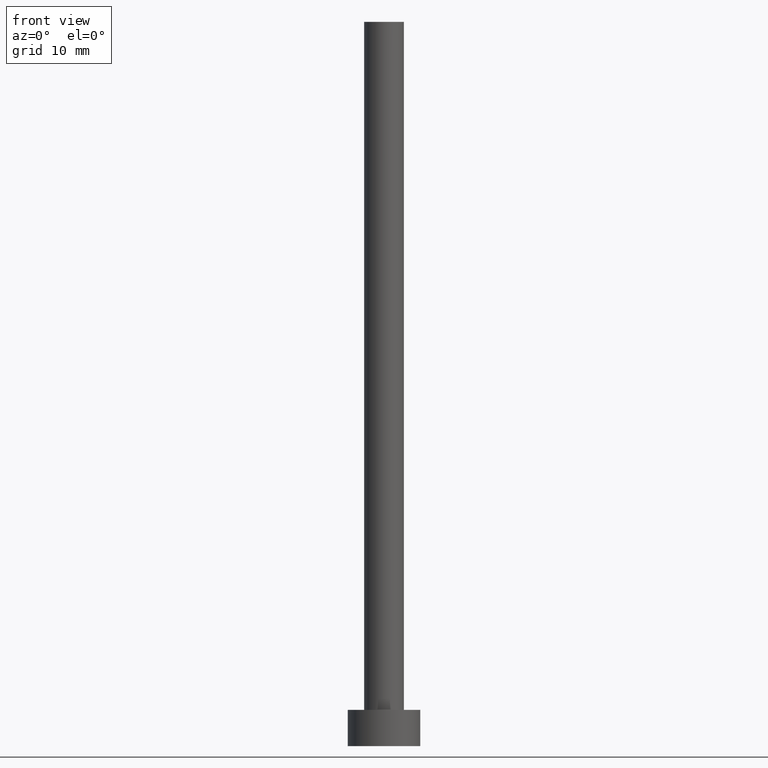
[diagram: clean part render]
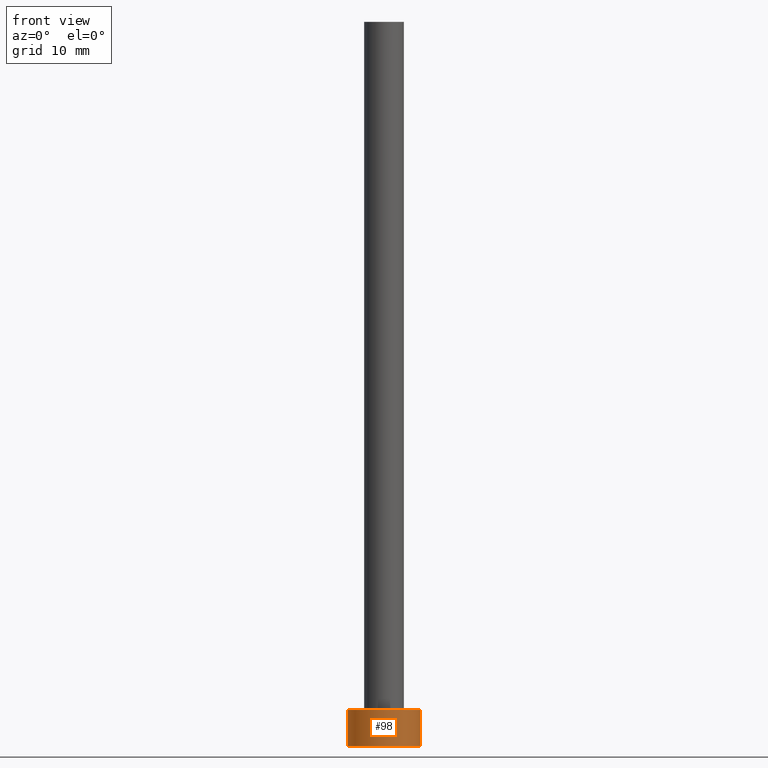
[diagram: same view with one face highlighted and labeled with its STEP entity id]
A machine part, front view. The second image highlights one B-rep face of the part: STEP entity #98.
In plain terms, the highlighted cylindrical surface (edge-blend (fillet) strip) has radius 5 mm, axis along (-0, -0, -1).
Its self-contained STEP definition (entity closure, byte-faithful):
#1 = CARTESIAN_POINT ( 'NONE',  ( 0.000000000000000000, 0.000000000000000000, 5.000000000000000000 ) ) ;
#7 = AXIS2_PLACEMENT_3D ( 'NONE', #251, #81, #61 ) ;
#17 = DIRECTION ( 'NONE',  ( -0.000000000000000000, -0.000000000000000000, -1.000000000000000000 ) ) ;
#30 = AXIS2_PLACEMENT_3D ( 'NONE', #225, #148, #43 ) ;
#31 = ORIENTED_EDGE ( 'NONE', *, *, #125, .T. ) ;
#34 = ORIENTED_EDGE ( 'NONE', *, *, #209, .T. ) ;
#38 = VERTEX_POINT ( 'NONE', #39 ) ;
#39 = CARTESIAN_POINT ( 'NONE',  ( 5.000000000000000000, 6.123233995736766282E-16, 0.000000000000000000 ) ) ;
#43 = DIRECTION ( 'NONE',  ( 1.000000000000000000, 0.000000000000000000, 0.000000000000000000 ) ) ;
#59 = AXIS2_PLACEMENT_3D ( 'NONE', #1, #17, #106 ) ;
#61 = DIRECTION ( 'NONE',  ( 1.000000000000000000, 0.000000000000000000, 0.000000000000000000 ) ) ;
#62 = EDGE_LOOP ( 'NONE', ( #253, #161, #31, #34 ) ) ;
#66 = LINE ( 'NONE', #68, #254 ) ;
#68 = CARTESIAN_POINT ( 'NONE',  ( -5.000000000000000000, 0.000000000000000000, 5.000000000000000000 ) ) ;
#75 = CARTESIAN_POINT ( 'NONE',  ( -5.000000000000000000, 0.000000000000000000, 5.000000000000000000 ) ) ;
#81 = DIRECTION ( 'NONE',  ( 0.000000000000000000, 0.000000000000000000, 1.000000000000000000 ) ) ;
#85 = DIRECTION ( 'NONE',  ( -0.000000000000000000, -0.000000000000000000, -1.000000000000000000 ) ) ;
#91 = VERTEX_POINT ( 'NONE', #190 ) ;
#98 = ADVANCED_FACE ( 'NONE', ( #201 ), #219, .T. ) ;
#106 = DIRECTION ( 'NONE',  ( -1.000000000000000000, 0.000000000000000000, 0.000000000000000000 ) ) ;
#125 = EDGE_CURVE ( 'NONE', #220, #91, #66, .T. ) ;
#142 = CIRCLE ( 'NONE', #7, 5.000000000000000000 ) ;
#148 = DIRECTION ( 'NONE',  ( 0.000000000000000000, 0.000000000000000000, 1.000000000000000000 ) ) ;
#155 = CIRCLE ( 'NONE', #30, 5.000000000000000000 ) ;
#161 = ORIENTED_EDGE ( 'NONE', *, *, #167, .F. ) ;
#167 = EDGE_CURVE ( 'NONE', #220, #187, #155, .T. ) ;
#172 = CARTESIAN_POINT ( 'NONE',  ( 5.000000000000000000, 6.123233995736766282E-16, 5.000000000000000000 ) ) ;
#176 = EDGE_CURVE ( 'NONE', #187, #38, #193, .T. ) ;
#187 = VERTEX_POINT ( 'NONE', #172 ) ;
#189 = VECTOR ( 'NONE', #221, 1000.000000000000000 ) ;
#190 = CARTESIAN_POINT ( 'NONE',  ( -5.000000000000000000, 0.000000000000000000, 0.000000000000000000 ) ) ;
#193 = LINE ( 'NONE', #207, #189 ) ;
#201 = FACE_OUTER_BOUND ( 'NONE', #62, .T. ) ;
#207 = CARTESIAN_POINT ( 'NONE',  ( 5.000000000000000000, 6.123233995736766282E-16, 5.000000000000000000 ) ) ;
#209 = EDGE_CURVE ( 'NONE', #91, #38, #142, .T. ) ;
#219 = CYLINDRICAL_SURFACE ( 'NONE', #59, 5.000000000000000000 ) ;
#220 = VERTEX_POINT ( 'NONE', #75 ) ;
#221 = DIRECTION ( 'NONE',  ( -0.000000000000000000, -0.000000000000000000, -1.000000000000000000 ) ) ;
#225 = CARTESIAN_POINT ( 'NONE',  ( 0.000000000000000000, 0.000000000000000000, 5.000000000000000000 ) ) ;
#251 = CARTESIAN_POINT ( 'NONE',  ( 0.000000000000000000, 0.000000000000000000, 0.000000000000000000 ) ) ;
#253 = ORIENTED_EDGE ( 'NONE', *, *, #176, .F. ) ;
#254 = VECTOR ( 'NONE', #85, 1000.000000000000000 ) ;